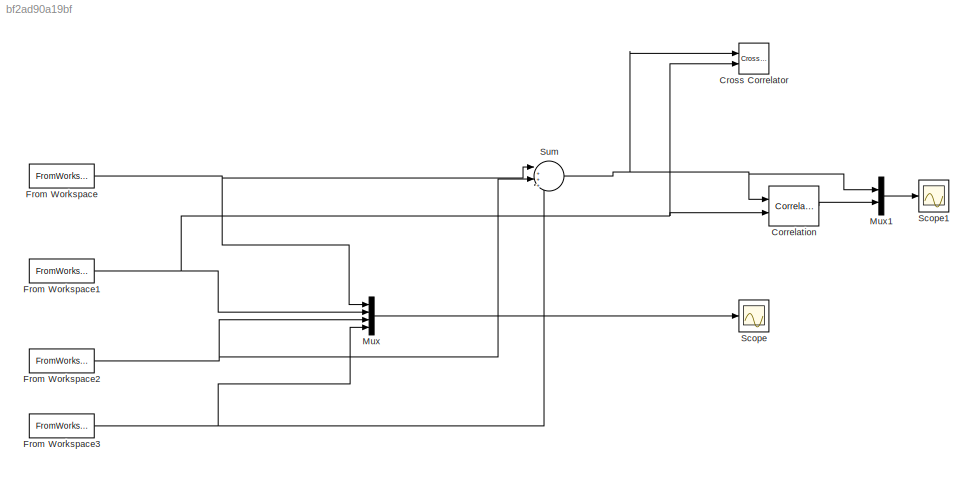
MODEL slx_bf2ad90a19bf
KIND model
BLOCK [Reference] Correlation  REF=dspstat3/Correlation
  LockScale = off
  Ports = [2, 1]
  SourceBlock = dspstat3/Correlation
  SourceType = Correlation
  accumDataTypeStr = Inherit: Inherit via internal rule
  accumFracLength = 30
  accumLastDataTypeStr = Inherit: Inherit via internal rule
  accumMode = Inherit via internal rule
  accumWordLength = 32
  additionalParams = off
  allowOverrides = on
  domain = Time
  outputDataTypeStr = Inherit: Same as accumulator
  outputFracLength = 15
  outputLastDataTypeStr = Inherit: Same as accumulator
  outputMax = []
  outputMin = []
  outputMode = Same as accumulator
  outputWordLength = 16
  overflowMode = off
  prodOutputDataTypeStr = Inherit: Inherit via internal rule
  prodOutputFracLength = 30
  prodOutputLastDataTypeStr = Inherit: Inherit via internal rule
  prodOutputMode = Inherit via internal rule
  prodOutputWordLength = 32
  roundingMode = Floor
BLOCK [Reference] Cross Correlator  REF=simulink_extras/Additional
Sinks/Cross
Correlator
  HowOften = 6500
  Ports = [2]
  SourceBlock = simulink_extras/Additional\nSinks/Cross\nCorrelator
  SourceType = Cross Correlator
  npts = 6500
  sampleT = 20e-9
BLOCK [FromWorkspace] From Workspace
  SampleTime = 0
  VariableName = [t,ho1]
  ZeroCross = on
BLOCK [FromWorkspace] From Workspace1
  SampleTime = 0
  VariableName = [t,ho2]
  ZeroCross = on
BLOCK [FromWorkspace] From Workspace2
  SampleTime = 0
  VariableName = [t,ho3]
  ZeroCross = on
BLOCK [FromWorkspace] From Workspace3
  SampleTime = 0
  VariableName = [t,ho4]
  ZeroCross = on
BLOCK [Mux] Mux
  DisplayOption = bar
  Ports = [4, 1]
BLOCK [Mux] Mux1
  DisplayOption = bar
  Inputs = 2
  Ports = [2, 1]
BLOCK [Scope] Scope
  DataFormat = StructureWithTime
  Floating = off
  NumInputPorts = 1
  Ports = [1]
  SampleTime = 0
  ShowLegends = off
BLOCK [Scope] Scope1
  DataFormat = StructureWithTime
  Floating = off
  NumInputPorts = 1
  Ports = [1]
  SampleTime = 0
  SaveName = ScopeData1
  ShowLegends = off
BLOCK [Sum] Sum
  IconShape = round
  InputSameDT = off
  Inputs = |++++
  OutDataTypeStr = Inherit: Inherit via internal rule
  Ports = [4, 1]
  SaturateOnIntegerOverflow = off
LINE Correlation:1 -> Mux1:2
NET From Workspace1:1 -> Correlation:2, Cross Correlator:2, Mux:2
NET From Workspace2:1 -> Mux:3, Sum:3
NET From Workspace3:1 -> Mux:4, Sum:4
NET From Workspace:1 -> Mux:1, Sum:1
LINE Mux1:1 -> Scope1:1
LINE Mux:1 -> Scope:1
NET Sum:1 -> Correlation:1, Cross Correlator:1, Mux1:1
note: NET lines group one-source signal fan-out (src -> all destinations, sorted); 1:1 wires keep LINE
